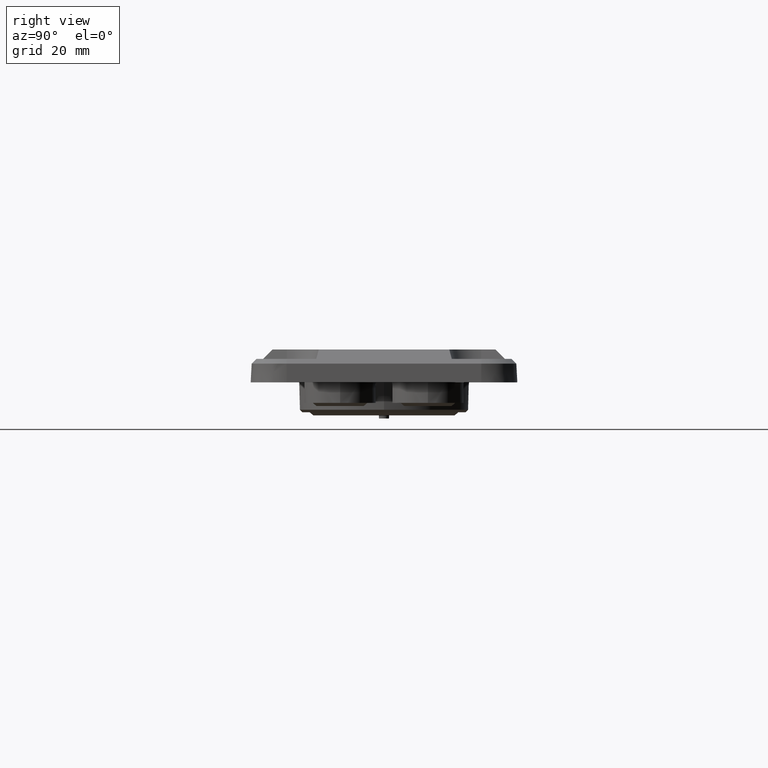
[diagram: clean part render]
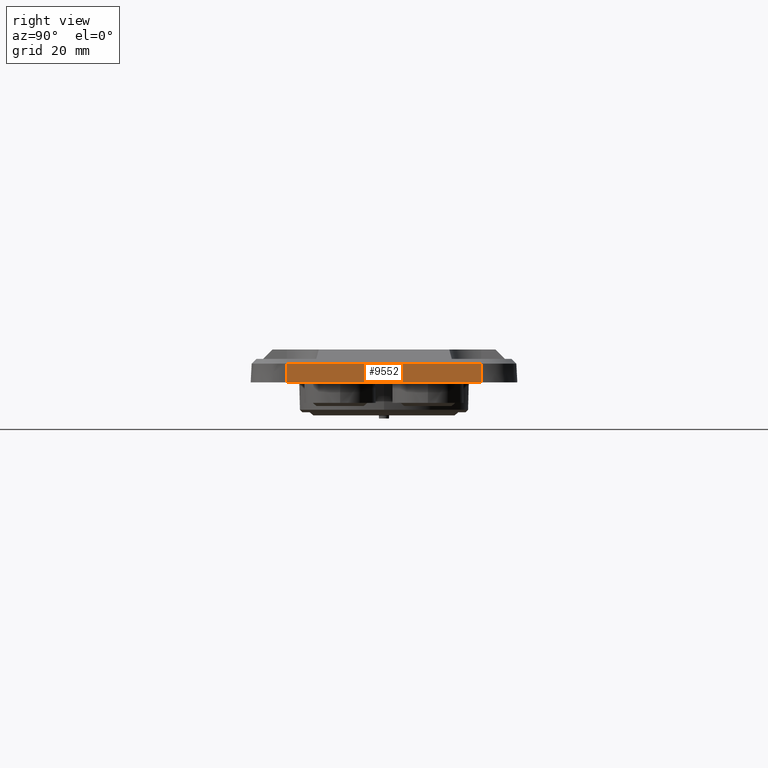
[diagram: same view with one face highlighted and labeled with its STEP entity id]
A machine part, right view. The second image highlights one B-rep face of the part: STEP entity #9552.
In plain terms, the highlighted planar face has unit normal (0.9986, 0, 0.0523).
Its self-contained STEP definition (entity closure, byte-faithful):
#95 = ORIENTED_EDGE ( 'NONE', *, *, #3599, .F. ) ;
#171 = VECTOR ( 'NONE', #9150, 1000.000000000000100 ) ;
#559 = VERTEX_POINT ( 'NONE', #9674 ) ;
#636 = CARTESIAN_POINT ( 'NONE',  ( 107.6855533243017400, 31.00000000000001400, 5.000000000000002700 ) ) ;
#914 = DIRECTION ( 'NONE',  ( 0.9986295347545738300, 0.0000000000000000000, 0.05233595624294470200 ) ) ;
#948 = DIRECTION ( 'NONE',  ( 0.05233595624294382100, -0.0000000000000000000, -0.9986295347545739400 ) ) ;
#1873 = LINE ( 'NONE', #6629, #171 ) ;
#1893 = CARTESIAN_POINT ( 'NONE',  ( 108.0000000000000100, 30.99999999999997200, -1.000000000000001300 ) ) ;
#2189 = CARTESIAN_POINT ( 'NONE',  ( 108.0000000000000100, 30.99999999999997200, -0.9999999999999985600 ) ) ;
#3026 = DIRECTION ( 'NONE',  ( -0.0000000000000000000, 1.000000000000000000, 0.0000000000000000000 ) ) ;
#3041 = EDGE_CURVE ( 'NONE', #7051, #10162, #4729, .T. ) ;
#3072 = EDGE_CURVE ( 'NONE', #7292, #559, #4451, .T. ) ;
#3217 = DIRECTION ( 'NONE',  ( 6.123031769111890000E-017, -1.000000000000000000, 6.123031769111886300E-017 ) ) ;
#3599 = EDGE_CURVE ( 'NONE', #7292, #10162, #10557, .T. ) ;
#4105 = FACE_OUTER_BOUND ( 'NONE', #10672, .T. ) ;
#4206 = PLANE ( 'NONE',  #7636 ) ;
#4451 = LINE ( 'NONE', #6682, #4599 ) ;
#4599 = VECTOR ( 'NONE', #3217, 1000.000000000000000 ) ;
#4729 = LINE ( 'NONE', #2189, #6431 ) ;
#5530 = ORIENTED_EDGE ( 'NONE', *, *, #8366, .F. ) ;
#6431 = VECTOR ( 'NONE', #3026, 1000.000000000000000 ) ;
#6629 = CARTESIAN_POINT ( 'NONE',  ( 108.0000000000000100, -31.00000000000000000, -1.000000000000001300 ) ) ;
#6682 = CARTESIAN_POINT ( 'NONE',  ( 107.6855533243017200, -31.00000000000001400, 5.000000000000005300 ) ) ;
#6853 = CARTESIAN_POINT ( 'NONE',  ( 107.9999999999999900, -31.00000000000000000, -1.000000000000000200 ) ) ;
#7051 = VERTEX_POINT ( 'NONE', #6853 ) ;
#7134 = ORIENTED_EDGE ( 'NONE', *, *, #3072, .T. ) ;
#7235 = CARTESIAN_POINT ( 'NONE',  ( 108.0000000000000100, 30.99999999999997200, -1.000000000000000200 ) ) ;
#7292 = VERTEX_POINT ( 'NONE', #636 ) ;
#7397 = VECTOR ( 'NONE', #948, 1000.000000000000100 ) ;
#7636 = AXIS2_PLACEMENT_3D ( 'NONE', #10903, #914, #7662 ) ;
#7659 = ORIENTED_EDGE ( 'NONE', *, *, #3041, .T. ) ;
#7662 = DIRECTION ( 'NONE',  ( 0.05233595624294470200, 0.0000000000000000000, -0.9986295347545738300 ) ) ;
#8366 = EDGE_CURVE ( 'NONE', #7051, #559, #1873, .T. ) ;
#9150 = DIRECTION ( 'NONE',  ( -0.05233595624294382100, 0.0000000000000000000, 0.9986295347545739400 ) ) ;
#9552 = ADVANCED_FACE ( 'NONE', ( #4105 ), #4206, .T. ) ;
#9674 = CARTESIAN_POINT ( 'NONE',  ( 107.6855533243017400, -31.00000000000000000, 5.000000000000010700 ) ) ;
#10162 = VERTEX_POINT ( 'NONE', #7235 ) ;
#10557 = LINE ( 'NONE', #1893, #7397 ) ;
#10672 = EDGE_LOOP ( 'NONE', ( #7659, #95, #7134, #5530 ) ) ;
#10903 = CARTESIAN_POINT ( 'NONE',  ( 108.0000000000000100, 30.99999999999997200, -1.000000000000001300 ) ) ;